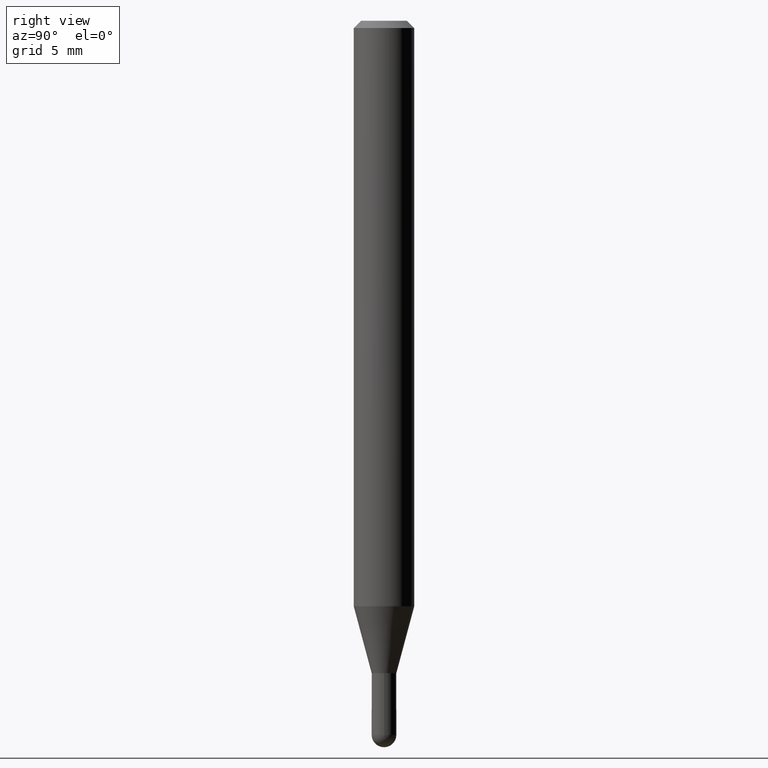
[diagram: clean part render]
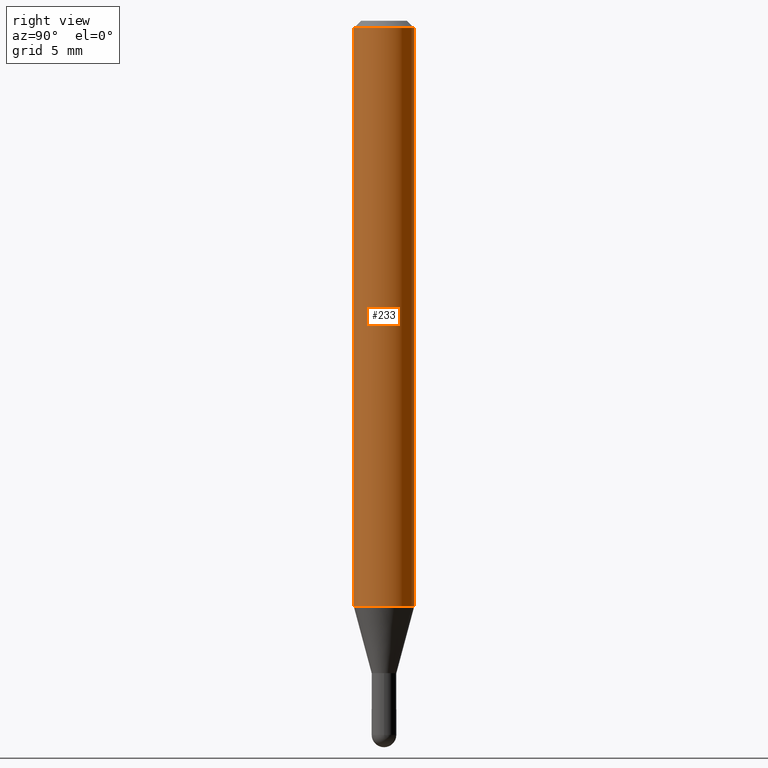
[diagram: same view with one face highlighted and labeled with its STEP entity id]
A machine part, right view. The second image highlights one B-rep face of the part: STEP entity #233.
In plain terms, the highlighted cylindrical surface (edge-blend (fillet) strip) has radius 1.5875 mm, axis along (-0, 0, 1).
Its self-contained STEP definition (entity closure, byte-faithful):
#2 = VERTEX_POINT ( 'NONE', #319 ) ;
#7 = AXIS2_PLACEMENT_3D ( 'NONE', #78, #428, #352 ) ;
#15 = CIRCLE ( 'NONE', #424, 0.06250000000000000000 ) ;
#39 = AXIS2_PLACEMENT_3D ( 'NONE', #106, #473, #354 ) ;
#41 = ORIENTED_EDGE ( 'NONE', *, *, #50, .T. ) ;
#50 = EDGE_CURVE ( 'NONE', #260, #2, #167, .T. ) ;
#78 = CARTESIAN_POINT ( 'NONE',  ( 0.000000000000000000, 0.000000000000000000, 0.000000000000000000 ) ) ;
#92 = ORIENTED_EDGE ( 'NONE', *, *, #451, .F. ) ;
#106 = CARTESIAN_POINT ( 'NONE',  ( 2.956365793915573525E-29, -4.220895328344351815E-15, -1.208914120119955804 ) ) ;
#146 = ORIENTED_EDGE ( 'NONE', *, *, #415, .T. ) ;
#155 = ORIENTED_EDGE ( 'NONE', *, *, #334, .F. ) ;
#167 = LINE ( 'NONE', #499, #204 ) ;
#188 = CIRCLE ( 'NONE', #39, 0.06250000000000000000 ) ;
#202 = DIRECTION ( 'NONE',  ( -2.445472134631221658E-29, 3.491476572318908216E-15, 1.000000000000000000 ) ) ;
#204 = VECTOR ( 'NONE', #202, 39.37007874015748143 ) ;
#225 = VERTEX_POINT ( 'NONE', #316 ) ;
#233 = ADVANCED_FACE ( 'NONE', ( #265 ), #259, .T. ) ;
#236 = CARTESIAN_POINT ( 'NONE',  ( 4.440892098500919026E-16, 0.06249999999999576727, -1.208914120119956026 ) ) ;
#249 = DIRECTION ( 'NONE',  ( -2.445472134631221658E-29, 3.491476572318908216E-15, 1.000000000000000000 ) ) ;
#259 = CYLINDRICAL_SURFACE ( 'NONE', #7, 0.06250000000000000000 ) ;
#260 = VERTEX_POINT ( 'NONE', #236 ) ;
#265 = FACE_OUTER_BOUND ( 'NONE', #512, .T. ) ;
#268 = VECTOR ( 'NONE', #249, 39.37007874015748143 ) ;
#284 = CARTESIAN_POINT ( 'NONE',  ( -4.364351673553622350E-16, -0.06250000000000424660, -1.208914120119955582 ) ) ;
#307 = VERTEX_POINT ( 'NONE', #284 ) ;
#316 = CARTESIAN_POINT ( 'NONE',  ( -4.364351673553912750E-16, -0.06250000000000005551, -0.01499999999999979128 ) ) ;
#319 = CARTESIAN_POINT ( 'NONE',  ( 4.440892098500922971E-16, 0.06249999999999995143, -0.01500000000000022669 ) ) ;
#333 = CARTESIAN_POINT ( 'NONE',  ( 3.668208201946835097E-31, -5.237214858478365529E-17, -0.01500000000000000812 ) ) ;
#334 = EDGE_CURVE ( 'NONE', #225, #2, #15, .T. ) ;
#335 = DIRECTION ( 'NONE',  ( -2.445472134631221658E-29, 3.491476572318908216E-15, 1.000000000000000000 ) ) ;
#343 = LINE ( 'NONE', #360, #268 ) ;
#352 = DIRECTION ( 'NONE',  ( -6.982962677686265922E-15, -1.000000000000000000, 3.491476572318908216E-15 ) ) ;
#354 = DIRECTION ( 'NONE',  ( -6.982962677686265922E-15, -1.000000000000000000, 4.370956789862821150E-15 ) ) ;
#360 = CARTESIAN_POINT ( 'NONE',  ( -4.364351673553916201E-16, -0.06250000000000000000, 2.182172857699317635E-16 ) ) ;
#415 = EDGE_CURVE ( 'NONE', #307, #260, #188, .T. ) ;
#424 = AXIS2_PLACEMENT_3D ( 'NONE', #333, #335, #501 ) ;
#428 = DIRECTION ( 'NONE',  ( -2.445472134631221658E-29, 3.491476572318908216E-15, 1.000000000000000000 ) ) ;
#451 = EDGE_CURVE ( 'NONE', #307, #225, #343, .T. ) ;
#473 = DIRECTION ( 'NONE',  ( -2.445472134631221658E-29, 3.491476572318908216E-15, 1.000000000000000000 ) ) ;
#499 = CARTESIAN_POINT ( 'NONE',  ( 4.440892098500625669E-16, 0.06250000000000000000, -2.182172857699317635E-16 ) ) ;
#501 = DIRECTION ( 'NONE',  ( -6.982962677686265922E-15, -1.000000000000000000, 3.483106191921935554E-15 ) ) ;
#512 = EDGE_LOOP ( 'NONE', ( #146, #41, #155, #92 ) ) ;